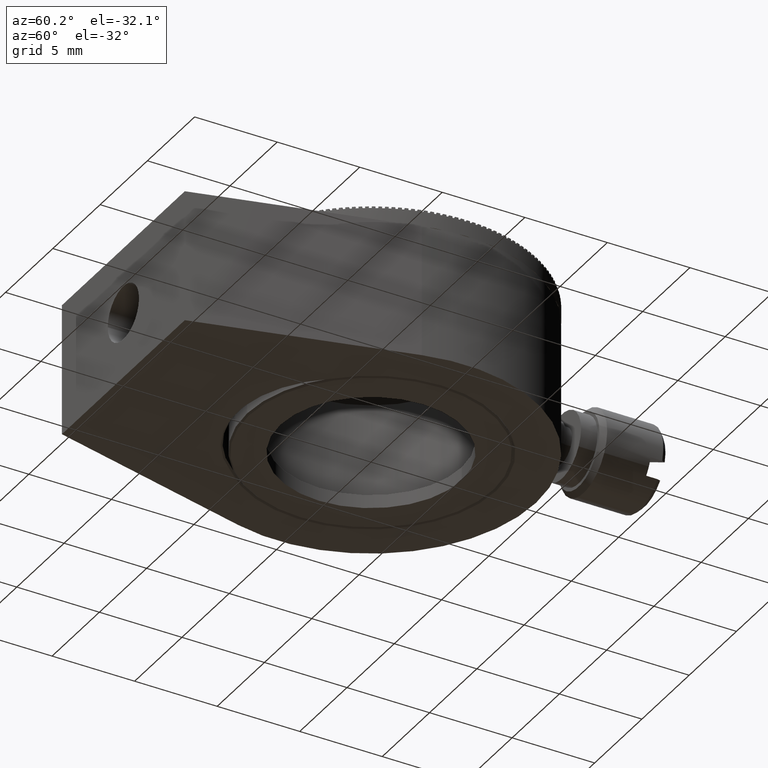
[diagram: clean part render]
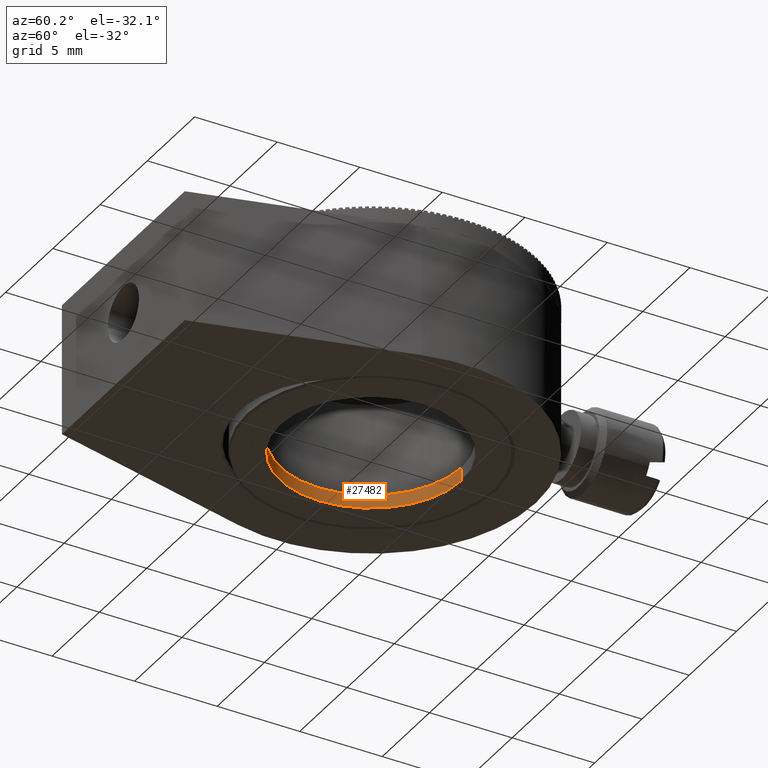
[diagram: same view with one face highlighted and labeled with its STEP entity id]
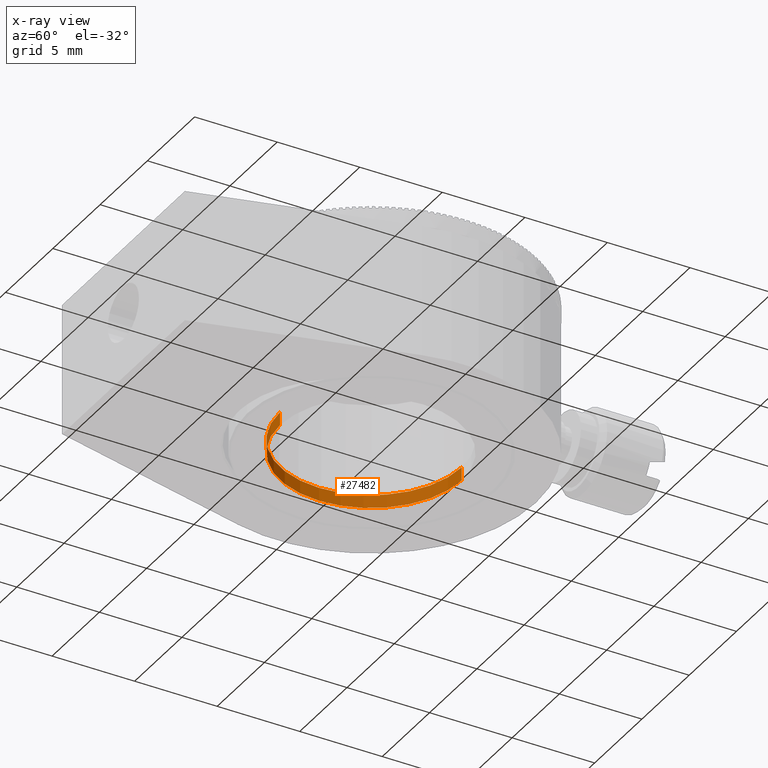
[diagram: x-ray of the same camera — body ghosted, the highlighted face saturated]
A machine part, auxiliary view. The second image highlights one B-rep face of the part: STEP entity #27482.
The next image is the same camera in x-ray: the body ghosted, the highlighted face saturated — about 0% of this face is hidden behind the body in this view.
In plain terms, the highlighted cylindrical surface (partial cylindrical patch) has radius 5.5 mm, axis along (-0, -0, 1).
Its self-contained STEP definition (entity closure, byte-faithful):
#1351 = CARTESIAN_POINT ( 'NONE',  ( -5.603589256817822811E-15, -5.500000000000027534, 0.8000000000000020428 ) ) ;
#6130 = VECTOR ( 'NONE', #54420, 1000.000000000000000 ) ;
#7330 = CARTESIAN_POINT ( 'NONE',  ( 4.143581159930497372E-15, 5.941671864808167465E-30, 1.734723475976807094E-15 ) ) ;
#8690 = DIRECTION ( 'NONE',  ( -1.665334536937734022E-15, -1.000000000000000000, -4.552198050369807188E-31 ) ) ;
#12100 = DIRECTION ( 'NONE',  ( -7.347880794884131569E-16, -7.667831074058618192E-31, 1.000000000000000000 ) ) ;
#12569 = ORIENTED_EDGE ( 'NONE', *, *, #29731, .T. ) ;
#15243 = AXIS2_PLACEMENT_3D ( 'NONE', #22243, #27032, #61100 ) ;
#18227 = DIRECTION ( 'NONE',  ( -7.347880794884131569E-16, -7.667831074058618192E-31, 1.000000000000000000 ) ) ;
#19756 = CARTESIAN_POINT ( 'NONE',  ( 1.397647685261912632E-14, 5.500000000000027534, 1.734723475976810250E-15 ) ) ;
#22243 = CARTESIAN_POINT ( 'NONE',  ( 3.555750696339758879E-15, 5.328245378883475908E-30, 0.8000000000000020428 ) ) ;
#22282 = CYLINDRICAL_SURFACE ( 'NONE', #31454, 5.500000000000027534 ) ;
#22649 = CIRCLE ( 'NONE', #48063, 5.500000000000027534 ) ;
#26083 = CARTESIAN_POINT ( 'NONE',  ( 1.368256162082371211E-14, 5.500000000000000000, 0.8000000000000020428 ) ) ;
#26798 = ORIENTED_EDGE ( 'NONE', *, *, #30930, .T. ) ;
#27032 = DIRECTION ( 'NONE',  ( -7.347880794884131569E-16, -7.667831074058618192E-31, 1.000000000000000000 ) ) ;
#27482 = ADVANCED_FACE ( 'NONE', ( #46482 ), #22282, .F. ) ;
#29731 = EDGE_CURVE ( 'NONE', #53963, #46536, #43931, .T. ) ;
#30930 = EDGE_CURVE ( 'NONE', #46536, #32530, #45731, .T. ) ;
#31454 = AXIS2_PLACEMENT_3D ( 'NONE', #7330, #12100, #50624 ) ;
#32530 = VERTEX_POINT ( 'NONE', #1351 ) ;
#40132 = CARTESIAN_POINT ( 'NONE',  ( -5.015758793227084318E-15, -5.500000000000027534, 1.734723475976804531E-15 ) ) ;
#40593 = CARTESIAN_POINT ( 'NONE',  ( 1.368256162082371527E-14, 5.500000000000000000, 1.734723475976818336E-15 ) ) ;
#42949 = VERTEX_POINT ( 'NONE', #40132 ) ;
#43931 = LINE ( 'NONE', #19756, #6130 ) ;
#44206 = DIRECTION ( 'NONE',  ( -7.347880794884131569E-16, -7.667831074058618192E-31, 1.000000000000000000 ) ) ;
#45731 = CIRCLE ( 'NONE', #15243, 5.500000000000027534 ) ;
#46151 = VECTOR ( 'NONE', #44206, 1000.000000000000000 ) ;
#46482 = FACE_OUTER_BOUND ( 'NONE', #59181, .T. ) ;
#46536 = VERTEX_POINT ( 'NONE', #26083 ) ;
#48063 = AXIS2_PLACEMENT_3D ( 'NONE', #62819, #18227, #8690 ) ;
#50014 = EDGE_CURVE ( 'NONE', #53963, #42949, #22649, .T. ) ;
#50624 = DIRECTION ( 'NONE',  ( -1.665334536937734022E-15, -1.000000000000000000, -4.552198050369807188E-31 ) ) ;
#52617 = EDGE_CURVE ( 'NONE', #42949, #32530, #54381, .T. ) ;
#53138 = CARTESIAN_POINT ( 'NONE',  ( -5.015758793227084318E-15, -5.500000000000027534, 1.734723475976804531E-15 ) ) ;
#53182 = ORIENTED_EDGE ( 'NONE', *, *, #52617, .F. ) ;
#53947 = ORIENTED_EDGE ( 'NONE', *, *, #50014, .F. ) ;
#53963 = VERTEX_POINT ( 'NONE', #40593 ) ;
#54381 = LINE ( 'NONE', #53138, #46151 ) ;
#54420 = DIRECTION ( 'NONE',  ( -7.347880794884131569E-16, -7.667831074058618192E-31, 1.000000000000000000 ) ) ;
#59181 = EDGE_LOOP ( 'NONE', ( #53947, #12569, #26798, #53182 ) ) ;
#61100 = DIRECTION ( 'NONE',  ( -1.665334536937734022E-15, -1.000000000000000000, 0.000000000000000000 ) ) ;
#62819 = CARTESIAN_POINT ( 'NONE',  ( 4.143581159930497372E-15, 5.941671864808167465E-30, 1.734723475976807094E-15 ) ) ;